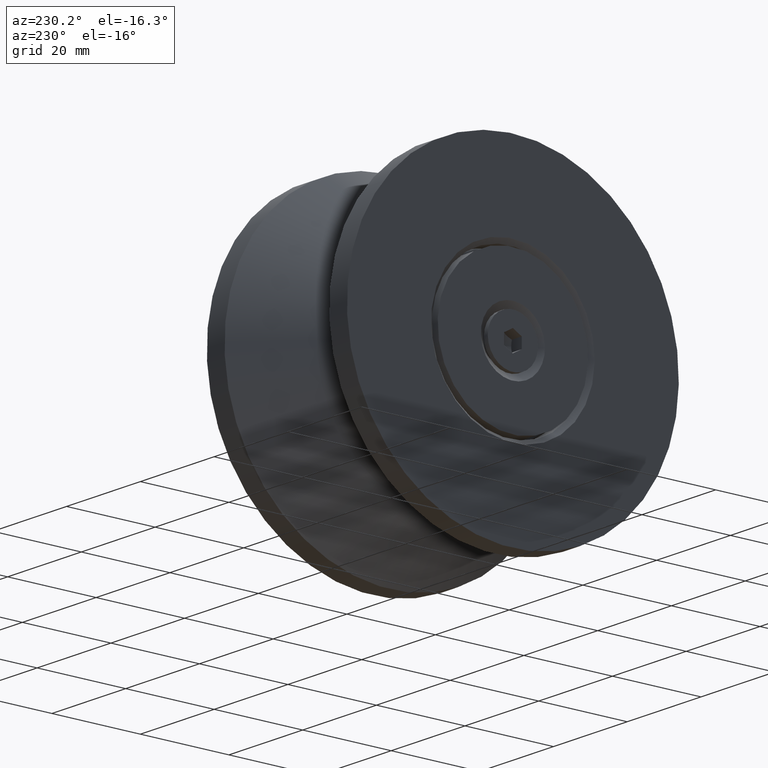
[diagram: clean part render]
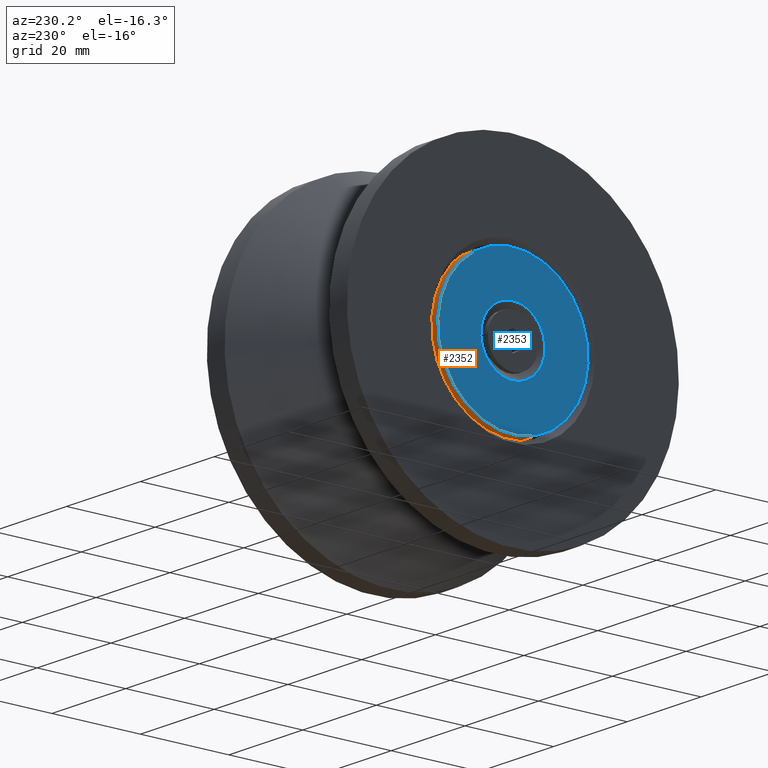
[diagram: same view with the hole feature highlighted: cylindrical wall and planar end face, labeled with their STEP entity ids]
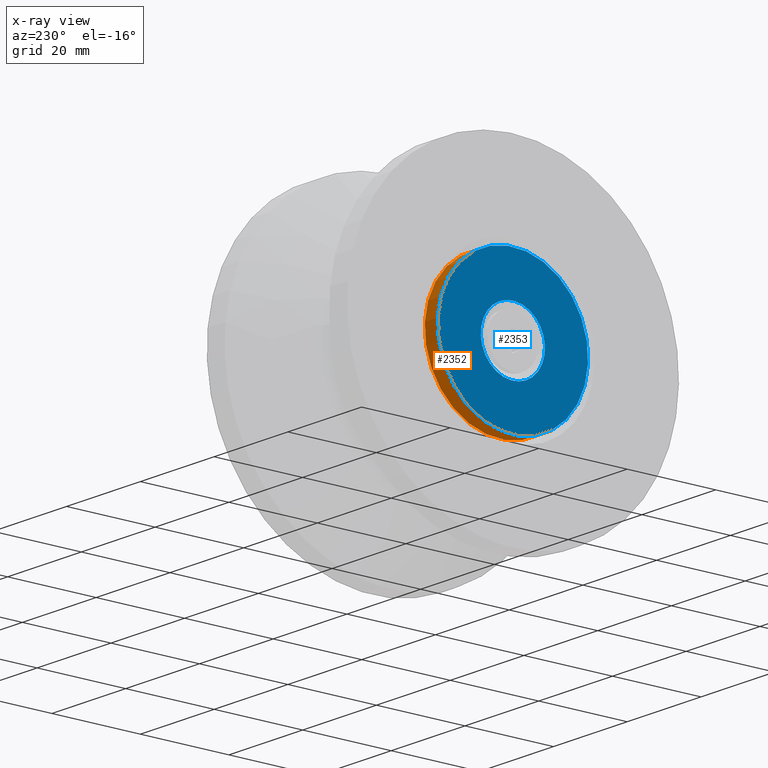
[diagram: x-ray of the same camera — body ghosted, the hole faces saturated]
A machine part, auxiliary view. The highlighted faces form one hole feature of diameter 34 mm: the cylindrical wall (entity #2352, orange) and its adjacent planar end face (entity #2353, blue) — they share a circular edge in the B-rep.
The next image is the same camera in x-ray (body ghosted, the hole faces saturated) — the bore reads through the body.
Wall:
#361=LINE('',#4972,#449);
#449=VECTOR('',#3440,17.);
#504=CYLINDRICAL_SURFACE('',#2847,17.);
#607=FACE_OUTER_BOUND('',#774,.T.);
#774=EDGE_LOOP('',(#2063,#2064,#2065,#2066));
#946=CIRCLE('',#2846,17.);
#947=CIRCLE('',#2848,17.);
#1155=VERTEX_POINT('',#4967);
#1156=VERTEX_POINT('',#4970);
#1465=EDGE_CURVE('',#1155,#1155,#946,.T.);
#1466=EDGE_CURVE('',#1156,#1156,#947,.T.);
#1467=EDGE_CURVE('',#1156,#1155,#361,.T.);
#2063=ORIENTED_EDGE('',*,*,#1466,.F.);
#2064=ORIENTED_EDGE('',*,*,#1467,.T.);
#2065=ORIENTED_EDGE('',*,*,#1465,.T.);
#2066=ORIENTED_EDGE('',*,*,#1467,.F.);
#2352=ADVANCED_FACE('',(#607),#504,.T.);
#2846=AXIS2_PLACEMENT_3D('',#4968,#3434,#3435);
#2847=AXIS2_PLACEMENT_3D('',#4969,#3436,#3437);
#2848=AXIS2_PLACEMENT_3D('',#4971,#3438,#3439);
#3434=DIRECTION('center_axis',(1.,0.,0.));
#3435=DIRECTION('ref_axis',(0.,1.,0.));
#3436=DIRECTION('center_axis',(1.,0.,0.));
#3437=DIRECTION('ref_axis',(0.,1.,0.));
#3438=DIRECTION('center_axis',(1.,0.,0.));
#3439=DIRECTION('ref_axis',(0.,1.,0.));
#3440=DIRECTION('',(-1.,0.,0.));
#4967=CARTESIAN_POINT('',(0.499999999999994,-17.,-2.0818995585505E-15));
#4968=CARTESIAN_POINT('Origin',(0.499999999999994,0.,0.));
#4969=CARTESIAN_POINT('Origin',(2.25,0.,0.));
#4970=CARTESIAN_POINT('',(4.,-17.,-2.0818995585505E-15));
#4971=CARTESIAN_POINT('Origin',(4.,0.,0.));
#4972=CARTESIAN_POINT('',(2.25,-17.,-2.0818995585505E-15));
End face:
#263=FACE_BOUND('',#776,.T.);
#291=PLANE('',#2849);
#608=FACE_OUTER_BOUND('',#775,.T.);
#775=EDGE_LOOP('',(#2067));
#776=EDGE_LOOP('',(#2068));
#942=CIRCLE('',#2839,7.25);
#947=CIRCLE('',#2848,17.);
#1151=VERTEX_POINT('',#4954);
#1156=VERTEX_POINT('',#4970);
#1459=EDGE_CURVE('',#1151,#1151,#942,.T.);
#1466=EDGE_CURVE('',#1156,#1156,#947,.T.);
#2067=ORIENTED_EDGE('',*,*,#1466,.T.);
#2068=ORIENTED_EDGE('',*,*,#1459,.T.);
#2353=ADVANCED_FACE('',(#608,#263),#291,.T.);
#2839=AXIS2_PLACEMENT_3D('',#4955,#3418,#3419);
#2848=AXIS2_PLACEMENT_3D('',#4971,#3438,#3439);
#2849=AXIS2_PLACEMENT_3D('',#4973,#3441,#3442);
#3418=DIRECTION('center_axis',(-1.,0.,0.));
#3419=DIRECTION('ref_axis',(0.,0.,-1.));
#3438=DIRECTION('center_axis',(1.,0.,0.));
#3439=DIRECTION('ref_axis',(0.,1.,0.));
#3441=DIRECTION('center_axis',(1.,0.,0.));
#3442=DIRECTION('ref_axis',(0.,0.,-1.));
#4954=CARTESIAN_POINT('',(4.,-8.87868929381831E-16,7.25));
#4955=CARTESIAN_POINT('Origin',(4.,0.,0.));
#4970=CARTESIAN_POINT('',(4.,-17.,-2.0818995585505E-15));
#4971=CARTESIAN_POINT('Origin',(4.,0.,0.));
#4973=CARTESIAN_POINT('Origin',(4.,8.5,0.));